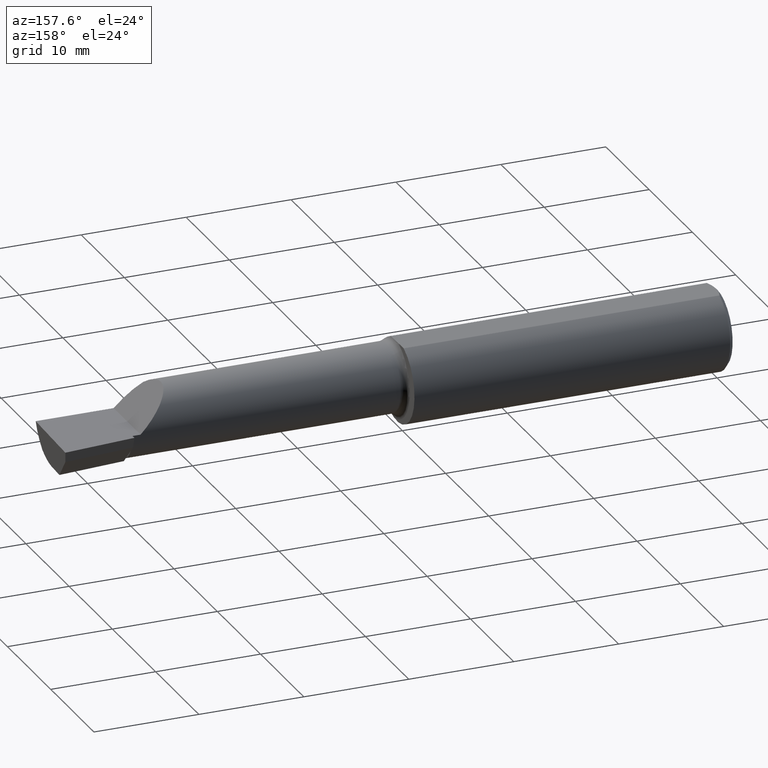
[diagram: clean part render]
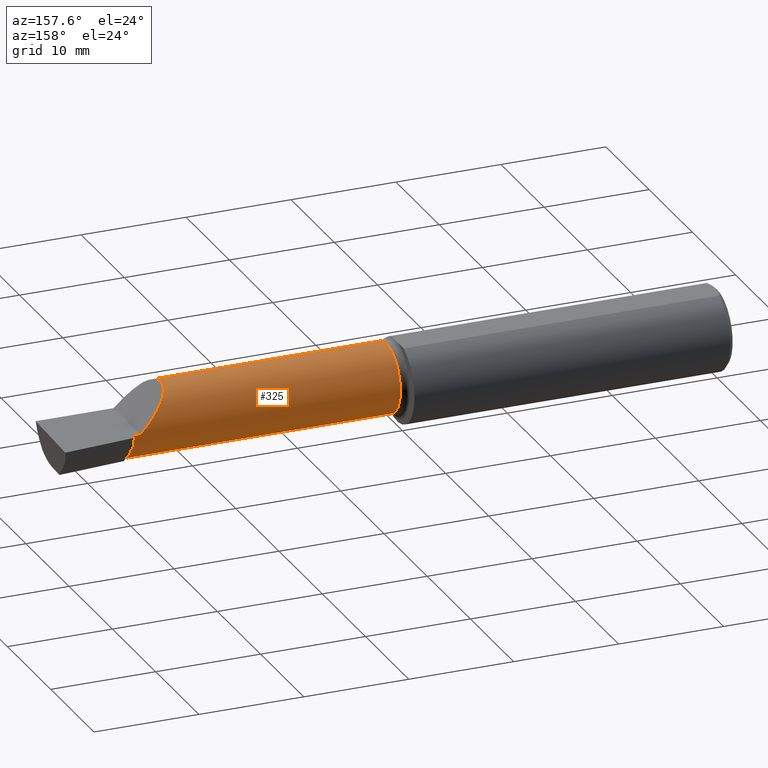
[diagram: same view with one face highlighted and labeled with its STEP entity id]
A machine part, auxiliary view. The second image highlights one B-rep face of the part: STEP entity #325.
In plain terms, the highlighted cylindrical surface (partial cylindrical patch) has radius 3.2487 mm, axis along (-1, 0, -0).
Its self-contained STEP definition (entity closure, byte-faithful):
#4 = LINE ( 'NONE', #294, #46 ) ;
#5 = ORIENTED_EDGE ( 'NONE', *, *, #257, .T. ) ;
#16 = CYLINDRICAL_SURFACE ( 'NONE', #361, 0.1278999999999999582 ) ;
#20 = CARTESIAN_POINT ( 'NONE',  ( 2.229999999999999982, -0.03899999999999999994, 0.000000000000000000 ) ) ;
#26 = CARTESIAN_POINT ( 'NONE',  ( 2.229999999999999982, 0.07184910379568668071, -0.06380349667293373772 ) ) ;
#28 = ORIENTED_EDGE ( 'NONE', *, *, #131, .T. ) ;
#32 = EDGE_CURVE ( 'NONE', #270, #499, #164, .T. ) ;
#41 = CARTESIAN_POINT ( 'NONE',  ( 2.229999999999999982, -0.03900000000000000688, -0.1279000000000000137 ) ) ;
#43 = ORIENTED_EDGE ( 'NONE', *, *, #228, .T. ) ;
#44 = CARTESIAN_POINT ( 'NONE',  ( 2.481412959734991652, -0.1221769230769231412, -0.09715971113303906170 ) ) ;
#46 = VECTOR ( 'NONE', #627, 39.37007874015748143 ) ;
#55 = ORIENTED_EDGE ( 'NONE', *, *, #414, .F. ) ;
#61 = EDGE_CURVE ( 'NONE', #546, #424, #67, .T. ) ;
#64 = DIRECTION ( 'NONE',  ( -1.000000000000000000, 6.829619984160658046E-18, -0.000000000000000000 ) ) ;
#65 = CARTESIAN_POINT ( 'NONE',  ( 2.229999999999999982, -0.03899999999999999994, 0.000000000000000000 ) ) ;
#67 = CIRCLE ( 'NONE', #175, 0.1278999999999999304 ) ;
#71 = ORIENTED_EDGE ( 'NONE', *, *, #61, .F. ) ;
#73 = VERTEX_POINT ( 'NONE', #509 ) ;
#80 = CARTESIAN_POINT ( 'NONE',  ( 1.225000000000000089, -0.03899999999999998607, 0.000000000000000000 ) ) ;
#82 = CARTESIAN_POINT ( 'NONE',  ( 2.102840288866959728, -0.1221769230769229747, 0.09715971113303922824 ) ) ;
#86 = CARTESIAN_POINT ( 'NONE',  ( 8.735083959741788277E-19, 0.08889999999999995128, 3.155924005931204823E-16 ) ) ;
#99 = CARTESIAN_POINT ( 'NONE',  ( 1.225000000000000089, -0.1221769230769235853, 0.09715971113303860374 ) ) ;
#107 = CARTESIAN_POINT ( 'NONE',  ( 2.229999999999999982, -0.03899999999999999994, 0.000000000000000000 ) ) ;
#109 = CARTESIAN_POINT ( 'NONE',  ( 1.727500000000000036, -0.1221769230769231412, 0.09715971113303906170 ) ) ;
#130 = ORIENTED_EDGE ( 'NONE', *, *, #285, .F. ) ;
#131 = EDGE_CURVE ( 'NONE', #579, #445, #4, .T. ) ;
#133 = LINE ( 'NONE', #86, #293 ) ;
#134 = CARTESIAN_POINT ( 'NONE',  ( 2.200000000000000178, 0.08889999999999993741, 9.797174393178826150E-17 ) ) ;
#155 = CARTESIAN_POINT ( 'NONE',  ( 2.479563421481711494, -0.09875439382140582811, -0.1172113754642091638 ) ) ;
#158 = CARTESIAN_POINT ( 'NONE',  ( 2.200000000000000178, 0.08889999999999993741, 9.797174393178826150E-17 ) ) ;
#161 = CARTESIAN_POINT ( 'NONE',  ( 0.000000000000000000, -0.03899999999999997913, 0.000000000000000000 ) ) ;
#164 = LINE ( 'NONE', #109, #291 ) ;
#175 = AXIS2_PLACEMENT_3D ( 'NONE', #65, #456, #213 ) ;
#189 = CIRCLE ( 'NONE', #554, 0.1279000000000000137 ) ;
#204 = VERTEX_POINT ( 'NONE', #388 ) ;
#206 = DIRECTION ( 'NONE',  ( -6.829619984160657276E-18, -1.000000000000000000, 0.000000000000000000 ) ) ;
#210 = DIRECTION ( 'NONE',  ( -1.000000000000000000, 6.829619984160658046E-18, -0.000000000000000000 ) ) ;
#213 = DIRECTION ( 'NONE',  ( 0.000000000000000000, -1.000000000000000000, 0.000000000000000000 ) ) ;
#218 = ORIENTED_EDGE ( 'NONE', *, *, #450, .F. ) ;
#225 = LINE ( 'NONE', #370, #628 ) ;
#228 = EDGE_CURVE ( 'NONE', #256, #73, #133, .T. ) ;
#233 = CARTESIAN_POINT ( 'NONE',  ( 2.073458044061706751, 0.08889999999999992353, 0.1265419559382922055 ) ) ;
#256 = VERTEX_POINT ( 'NONE', #158 ) ;
#257 = EDGE_CURVE ( 'NONE', #73, #424, #189, .T. ) ;
#259 = FACE_OUTER_BOUND ( 'NONE', #597, .T. ) ;
#268 = DIRECTION ( 'NONE',  ( 0.000000000000000000, -1.000000000000000000, 0.000000000000000000 ) ) ;
#270 = VERTEX_POINT ( 'NONE', #99 ) ;
#276 = EDGE_CURVE ( 'NONE', #546, #625, #329, .T. ) ;
#282 = DIRECTION ( 'NONE',  ( 1.000000000000000000, -6.829619984160658046E-18, 0.000000000000000000 ) ) ;
#285 = EDGE_CURVE ( 'NONE', #579, #204, #328, .T. ) ;
#289 = AXIS2_PLACEMENT_3D ( 'NONE', #80, #462, #268 ) ;
#291 = VECTOR ( 'NONE', #503, 39.37007874015748143 ) ;
#293 = VECTOR ( 'NONE', #282, 39.37007874015748143 ) ;
#294 = CARTESIAN_POINT ( 'NONE',  ( 1.727500000000000036, -0.1221769230769231412, -0.09715971113303906170 ) ) ;
#325 = ADVANCED_FACE ( 'NONE', ( #259 ), #16, .T. ) ;
#328 =( BOUNDED_CURVE ( )  B_SPLINE_CURVE ( 3, ( #603, #155, #400, #395 ),
 .UNSPECIFIED., .F., .F. ) 
 B_SPLINE_CURVE_WITH_KNOTS ( ( 4, 4 ),
 ( 5.785218908160204343, 6.493234751459727505 ),
 .UNSPECIFIED. ) 
 CURVE ( )  GEOMETRIC_REPRESENTATION_ITEM ( )  RATIONAL_B_SPLINE_CURVE ( ( 1.000000000000000000, 0.9586605761426438832, 0.9586605761426438832, 1.000000000000000000 ) ) 
 REPRESENTATION_ITEM ( '' )  );
#329 = CIRCLE ( 'NONE', #463, 0.1279000000000000137 ) ;
#340 = ORIENTED_EDGE ( 'NONE', *, *, #32, .T. ) ;
#361 = AXIS2_PLACEMENT_3D ( 'NONE', #161, #455, #206 ) ;
#370 = CARTESIAN_POINT ( 'NONE',  ( 2.500000000000000000, -0.03900000000000000688, -0.1279000000000000137 ) ) ;
#372 =( BOUNDED_CURVE ( )  B_SPLINE_CURVE ( 3, ( #82, #439, #233, #134 ),
 .UNSPECIFIED., .F., .F. ) 
 B_SPLINE_CURVE_WITH_KNOTS ( ( 4, 4 ),
 ( 5.575169463880064846, 7.853981633974482790 ),
 .UNSPECIFIED. ) 
 CURVE ( )  GEOMETRIC_REPRESENTATION_ITEM ( )  RATIONAL_B_SPLINE_CURVE ( ( 1.000000000000000000, 0.6120893875309946219, 0.6120893875309946219, 1.000000000000000000 ) ) 
 REPRESENTATION_ITEM ( '' )  );
#375 = CARTESIAN_POINT ( 'NONE',  ( 1.225000000000000089, -0.1221769230769234466, -0.09715971113303868700 ) ) ;
#388 = CARTESIAN_POINT ( 'NONE',  ( 2.479815297401247065, -0.03900000000000000688, -0.1279000000000000137 ) ) ;
#395 = CARTESIAN_POINT ( 'NONE',  ( 2.479815297401247065, -0.03900000000000000688, -0.1279000000000000137 ) ) ;
#400 = CARTESIAN_POINT ( 'NONE',  ( 2.479007902537362362, -0.06983316589608469516, -0.1279000000000000137 ) ) ;
#414 = EDGE_CURVE ( 'NONE', #204, #625, #225, .T. ) ;
#424 = VERTEX_POINT ( 'NONE', #26 ) ;
#439 = CARTESIAN_POINT ( 'NONE',  ( 2.020546539569986866, -0.02604885517094767886, 0.1794534604300112024 ) ) ;
#445 = VERTEX_POINT ( 'NONE', #375 ) ;
#449 = DIRECTION ( 'NONE',  ( 0.000000000000000000, -1.000000000000000000, 0.000000000000000000 ) ) ;
#450 = EDGE_CURVE ( 'NONE', #270, #445, #601, .T. ) ;
#455 = DIRECTION ( 'NONE',  ( -1.000000000000000000, 6.829619984160658046E-18, -0.000000000000000000 ) ) ;
#456 = DIRECTION ( 'NONE',  ( 1.000000000000000000, -6.829619984160658046E-18, 0.000000000000000000 ) ) ;
#462 = DIRECTION ( 'NONE',  ( -1.000000000000000000, 6.829619984160658046E-18, -0.000000000000000000 ) ) ;
#463 = AXIS2_PLACEMENT_3D ( 'NONE', #107, #210, #449 ) ;
#499 = VERTEX_POINT ( 'NONE', #565 ) ;
#503 = DIRECTION ( 'NONE',  ( 1.000000000000000000, -6.829619984160658046E-18, 0.000000000000000000 ) ) ;
#509 = CARTESIAN_POINT ( 'NONE',  ( 2.229999999999999982, 0.08889999999999999292, 3.155924005931206302E-16 ) ) ;
#527 = ORIENTED_EDGE ( 'NONE', *, *, #276, .T. ) ;
#544 = DIRECTION ( 'NONE',  ( 0.000000000000000000, -1.000000000000000000, 0.000000000000000000 ) ) ;
#546 = VERTEX_POINT ( 'NONE', #580 ) ;
#554 = AXIS2_PLACEMENT_3D ( 'NONE', #20, #64, #544 ) ;
#565 = CARTESIAN_POINT ( 'NONE',  ( 2.102840288866959728, -0.1221769230769229747, 0.09715971113303922824 ) ) ;
#569 = DIRECTION ( 'NONE',  ( -1.000000000000000000, 5.691349986800549142E-18, -0.000000000000000000 ) ) ;
#579 = VERTEX_POINT ( 'NONE', #44 ) ;
#580 = CARTESIAN_POINT ( 'NONE',  ( 2.229999999999999982, 0.02813183730496726306, -0.1088656347065472818 ) ) ;
#593 = EDGE_CURVE ( 'NONE', #499, #256, #372, .T. ) ;
#597 = EDGE_LOOP ( 'NONE', ( #130, #28, #218, #340, #619, #43, #5, #71, #527, #55 ) ) ;
#601 = CIRCLE ( 'NONE', #289, 0.1278999999999998749 ) ;
#603 = CARTESIAN_POINT ( 'NONE',  ( 2.481412959734991652, -0.1221769230769231412, -0.09715971113303906170 ) ) ;
#619 = ORIENTED_EDGE ( 'NONE', *, *, #593, .T. ) ;
#625 = VERTEX_POINT ( 'NONE', #41 ) ;
#627 = DIRECTION ( 'NONE',  ( -1.000000000000000000, 6.829619984160658046E-18, -0.000000000000000000 ) ) ;
#628 = VECTOR ( 'NONE', #569, 39.37007874015748143 ) ;